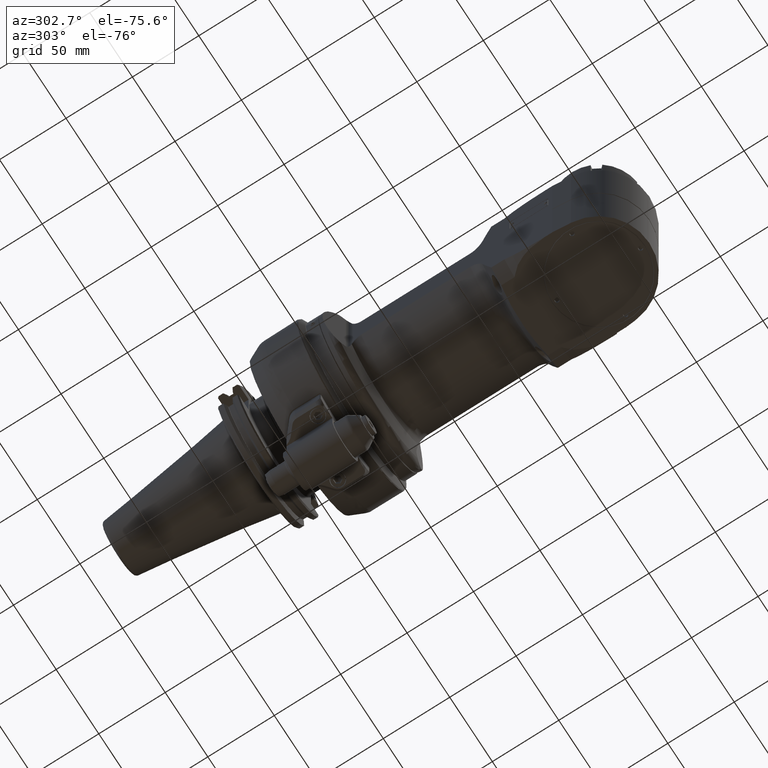
[diagram: clean part render]
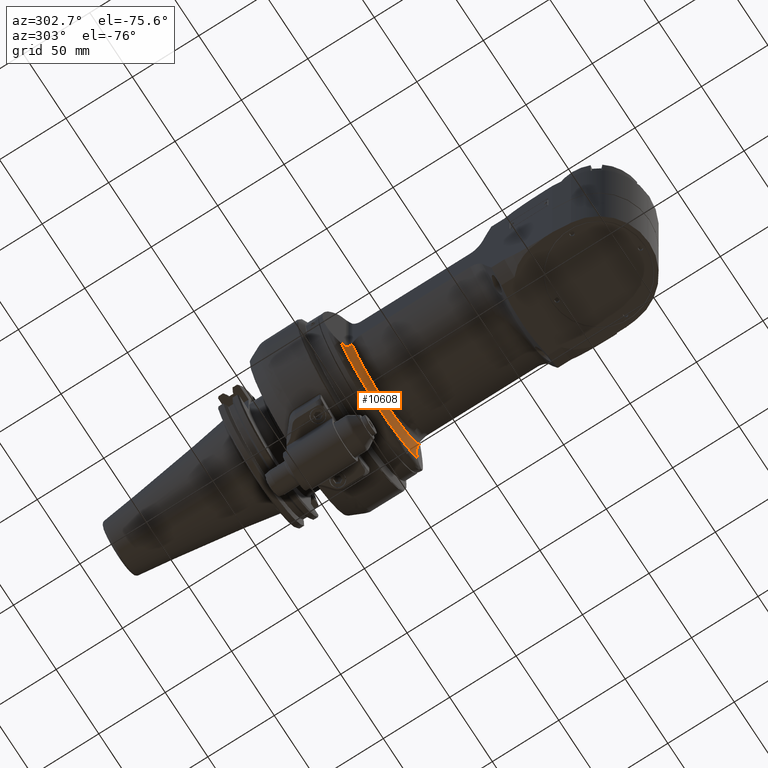
[diagram: same view with one face highlighted and labeled with its STEP entity id]
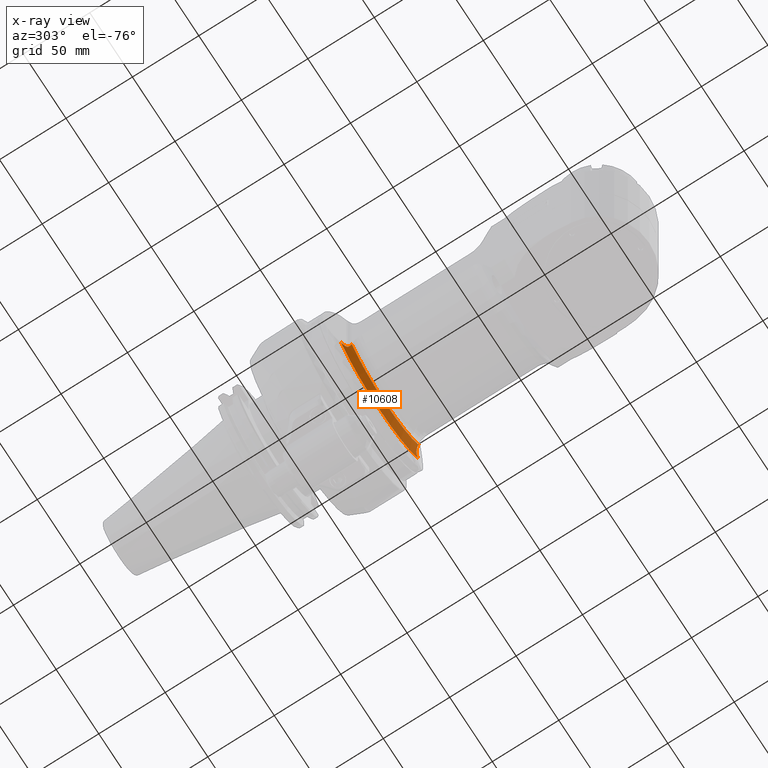
[diagram: x-ray of the same camera — body ghosted, the highlighted face saturated]
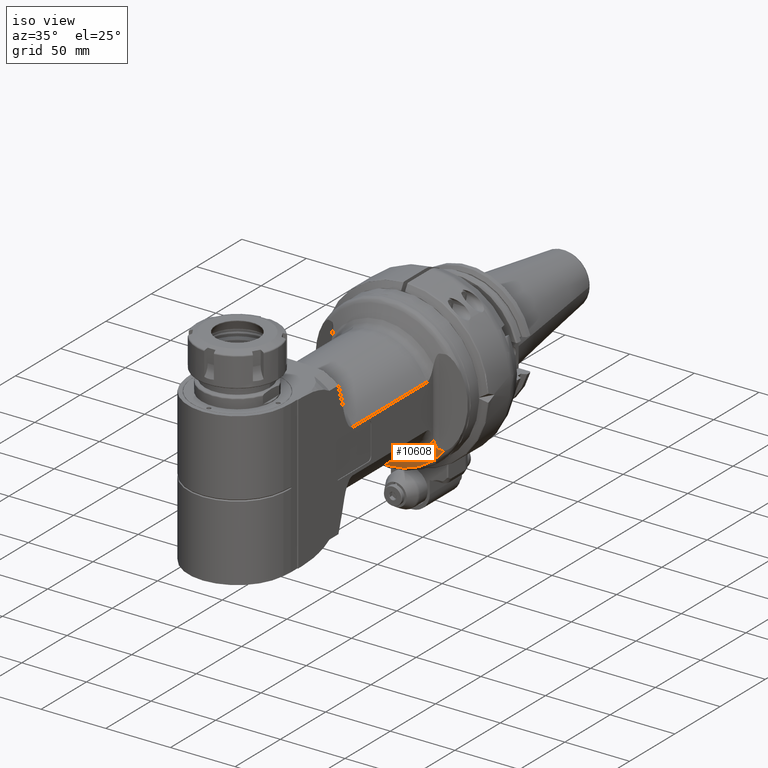
[diagram: same view with one face highlighted and labeled with its STEP entity id]
A machine part, auxiliary view. The second image highlights one B-rep face of the part: STEP entity #10608.
The next image is the same camera in x-ray: the body ghosted, the highlighted face saturated — about 0% of this face is hidden behind the body in this view.
A second angle (iso view) of the same face is appended — the face is thin or edge-on in the first view.
In plain terms, the highlighted conical surface has half-angle 65 deg.
Its self-contained STEP definition (entity closure, byte-faithful):
#194=CONICAL_SURFACE('',#11704,51.61607260739,1.13446401379631);
#405=B_SPLINE_CURVE_WITH_KNOTS('',3,(#32980,#32981,#32982,#32983,#32984,
#32985,#32986,#32987,#32988,#32989,#32990,#32991,#32992,#32993),
 .UNSPECIFIED.,.F.,.F.,(4,2,2,2,2,2,4),(-3.3839459374139,-3.34491687302724,
-3.30488652415757,-3.20090412408408,-3.09692172401059,-2.8889569238636,
-2.51379674988195),.UNSPECIFIED.);
#406=B_SPLINE_CURVE_WITH_KNOTS('',3,(#32996,#32997,#32998,#32999,#33000,
#33001,#33002,#33003,#33004,#33005,#33006,#33007,#33008,#33009,#33010,#33011),
 .UNSPECIFIED.,.F.,.F.,(4,2,2,2,2,2,2,4),(5.74349947690434,5.7790322507697,
6.10349368691564,6.2559278043933,6.33681693841255,6.49000788268724,6.5450537423814,
6.56980926321047),.UNSPECIFIED.);
#1111=CIRCLE('',#11702,47.11905390607);
#1112=CIRCLE('',#11705,97.5197025948993);
#1113=CIRCLE('',#11706,56.1130913087);
#1114=CIRCLE('',#11707,97.5197025937718);
#1675=FACE_OUTER_BOUND('',#2356,.T.);
#2356=EDGE_LOOP('',(#9123,#9124,#9125,#9126,#9127,#9128));
#4935=VERTEX_POINT('',#32942);
#4936=VERTEX_POINT('',#32949);
#4939=VERTEX_POINT('',#32978);
#4940=VERTEX_POINT('',#32995);
#4941=VERTEX_POINT('',#33012);
#4942=VERTEX_POINT('',#33014);
#6384=EDGE_CURVE('',#4936,#4935,#1111,.T.);
#6389=EDGE_CURVE('',#4939,#4935,#405,.T.);
#6390=EDGE_CURVE('',#4936,#4940,#406,.T.);
#6391=EDGE_CURVE('',#4941,#4939,#1112,.T.);
#6392=EDGE_CURVE('',#4942,#4941,#1113,.T.);
#6393=EDGE_CURVE('',#4940,#4942,#1114,.T.);
#9123=ORIENTED_EDGE('',*,*,#6390,.F.);
#9124=ORIENTED_EDGE('',*,*,#6384,.T.);
#9125=ORIENTED_EDGE('',*,*,#6389,.F.);
#9126=ORIENTED_EDGE('',*,*,#6391,.F.);
#9127=ORIENTED_EDGE('',*,*,#6392,.F.);
#9128=ORIENTED_EDGE('',*,*,#6393,.F.);
#10608=ADVANCED_FACE('',(#1675),#194,.T.);
#11702=AXIS2_PLACEMENT_3D('',#32950,#14270,#14271);
#11704=AXIS2_PLACEMENT_3D('',#32994,#14275,#14276);
#11705=AXIS2_PLACEMENT_3D('',#33013,#14277,#14278);
#11706=AXIS2_PLACEMENT_3D('',#33015,#14279,#14280);
#11707=AXIS2_PLACEMENT_3D('',#33016,#14281,#14282);
#14270=DIRECTION('center_axis',(-1.,0.,0.));
#14271=DIRECTION('ref_axis',(0.,0.558893115751513,0.82923970308082));
#14275=DIRECTION('center_axis',(-1.,0.,0.));
#14276=DIRECTION('ref_axis',(0.,1.,0.));
#14277=DIRECTION('center_axis',(0.939692620784516,2.90773967872056E-10,
-0.342020143329495));
#14278=DIRECTION('ref_axis',(0.00157477454613352,0.999989400000118,0.00432665835632665));
#14279=DIRECTION('center_axis',(-1.,0.,0.));
#14280=DIRECTION('ref_axis',(0.,0.5993560470278,0.8004825600169));
#14281=DIRECTION('center_axis',(0.939692620786267,-2.40388422794859E-10,
0.342020143324682));
#14282=DIRECTION('ref_axis',(-0.0106881016332397,0.999511602007294,0.0293653185967795));
#32942=CARTESIAN_POINT('',(27.5401761530965,26.3345148320145,-39.0729902731444));
#32949=CARTESIAN_POINT('',(27.54017614967,26.33451484891,39.07299027065));
#32950=CARTESIAN_POINT('Origin',(27.54017614973,0.,0.));
#32978=CARTESIAN_POINT('',(24.54205971778,33.67831531143,-41.6319194267));
#32980=CARTESIAN_POINT('Ctrl Pts',(24.542059717776,33.6783153114569,-41.6319194266984));
#32981=CARTESIAN_POINT('Ctrl Pts',(24.5866945793767,33.6777156713728,-41.5092861523297));
#32982=CARTESIAN_POINT('Ctrl Pts',(24.6404528879519,33.6518417299419,-41.3817241067619));
#32983=CARTESIAN_POINT('Ctrl Pts',(24.7557026472374,33.5541442833442,-41.1425441834988));
#32984=CARTESIAN_POINT('Ctrl Pts',(24.8172797387108,33.4819131667453,-41.0310319456922));
#32985=CARTESIAN_POINT('Ctrl Pts',(25.0201544641337,33.2068506389902,-40.6939514656379));
#32986=CARTESIAN_POINT('Ctrl Pts',(25.1528136608335,32.9647329388567,-40.5243945319493));
#32987=CARTESIAN_POINT('Ctrl Pts',(25.4106570250177,32.4525139354937,-40.2277235186572));
#32988=CARTESIAN_POINT('Ctrl Pts',(25.5349907632783,32.1790706131864,-40.1056721139747));
#32989=CARTESIAN_POINT('Ctrl Pts',(25.9043567407653,31.3161526376864,-39.7806370415111));
#32990=CARTESIAN_POINT('Ctrl Pts',(26.1431728791906,30.6897956387803,-39.6212617749355));
#32991=CARTESIAN_POINT('Ctrl Pts',(26.7999057889833,28.8366217652453,-39.2610910827115));
#32992=CARTESIAN_POINT('Ctrl Pts',(27.1965331434445,27.5543333185896,-39.139553243826));
#32993=CARTESIAN_POINT('Ctrl Pts',(27.5401761542684,26.3345148325287,-39.0729902697711));
#32994=CARTESIAN_POINT('Origin',(25.44318189044,0.,0.));
#32995=CARTESIAN_POINT('',(24.54205971778,33.67831531143,41.6319194267));
#32996=CARTESIAN_POINT('Ctrl Pts',(27.540176149655,26.334514848905,39.0729902706647));
#32997=CARTESIAN_POINT('Ctrl Pts',(27.5071869589824,26.4516155124383,39.0793802119337));
#32998=CARTESIAN_POINT('Ctrl Pts',(27.4743266307649,26.5671188762397,39.0861772746259));
#32999=CARTESIAN_POINT('Ctrl Pts',(27.1437018616705,27.7183591648838,39.1588872486799));
#33000=CARTESIAN_POINT('Ctrl Pts',(26.7574220469783,28.9506489886673,39.2879348046235));
#33001=CARTESIAN_POINT('Ctrl Pts',(26.237359934402,30.4264606607847,39.5681281256117));
#33002=CARTESIAN_POINT('Ctrl Pts',(26.0294942017061,30.9844570858414,39.6993164998445));
#33003=CARTESIAN_POINT('Ctrl Pts',(25.7499630055009,31.6769822759347,39.9164735121186));
#33004=CARTESIAN_POINT('Ctrl Pts',(25.6305837978936,31.9599204832875,40.0183725192247));
#33005=CARTESIAN_POINT('Ctrl Pts',(25.3332981265047,32.6222384124937,40.3043317271858));
#33006=CARTESIAN_POINT('Ctrl Pts',(25.0894758955106,33.1128629423838,40.5787724983323));
#33007=CARTESIAN_POINT('Ctrl Pts',(24.7961269750981,33.5105926023733,41.0661776923995));
#33008=CARTESIAN_POINT('Ctrl Pts',(24.711940002326,33.6030313144671,41.2238230001431));
#33009=CARTESIAN_POINT('Ctrl Pts',(24.6032121739833,33.6673375105562,41.4720316098272));
#33010=CARTESIAN_POINT('Ctrl Pts',(24.5712067758052,33.6779237398534,41.5518385429196));
#33011=CARTESIAN_POINT('Ctrl Pts',(24.542059717776,33.6783153114569,41.6319194266984));
#33012=CARTESIAN_POINT('',(23.34618763115,33.63172059327,-44.91755098127));
#33013=CARTESIAN_POINT('Origin',(24.388488172387,-63.8403535746333,-42.0538538628387));
#33014=CARTESIAN_POINT('',(23.34618763115,33.63172059329,44.91755098125));
#33015=CARTESIAN_POINT('Origin',(23.34618763115,0.,0.));
#33016=CARTESIAN_POINT('Origin',(24.3884881237155,-63.8403535735057,42.0538538451207));